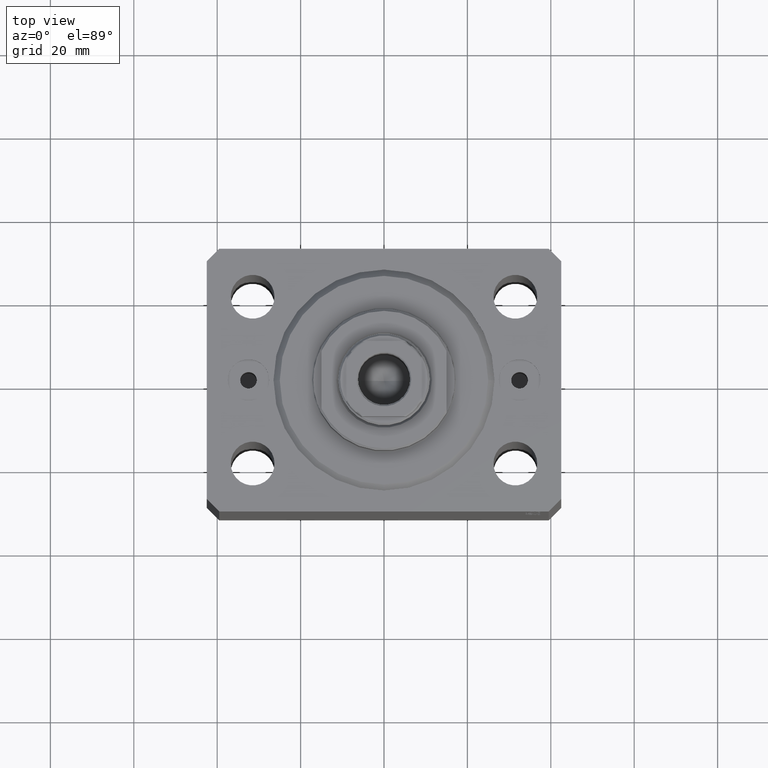
[diagram: clean part render]
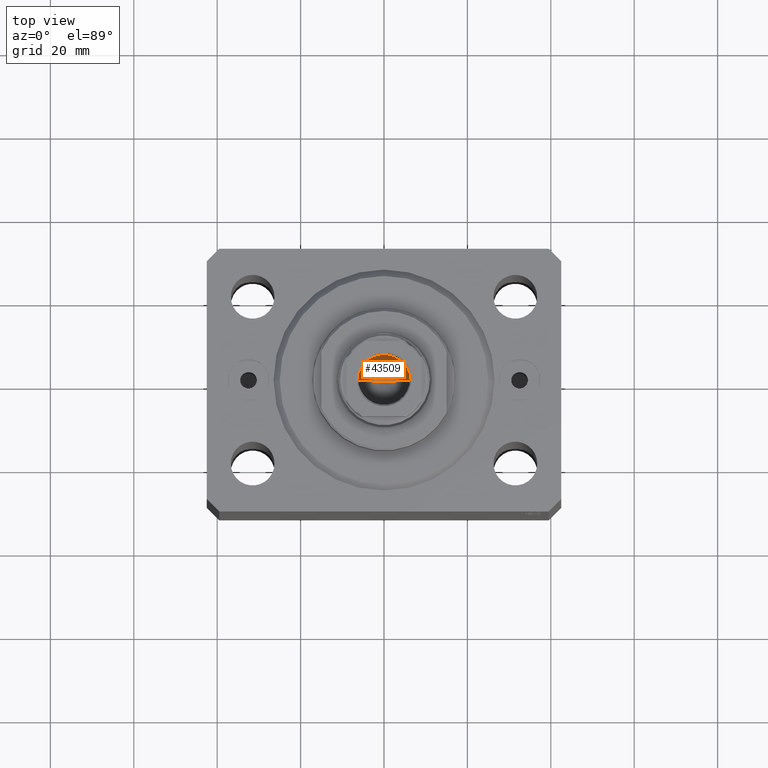
[diagram: same view with one face highlighted and labeled with its STEP entity id]
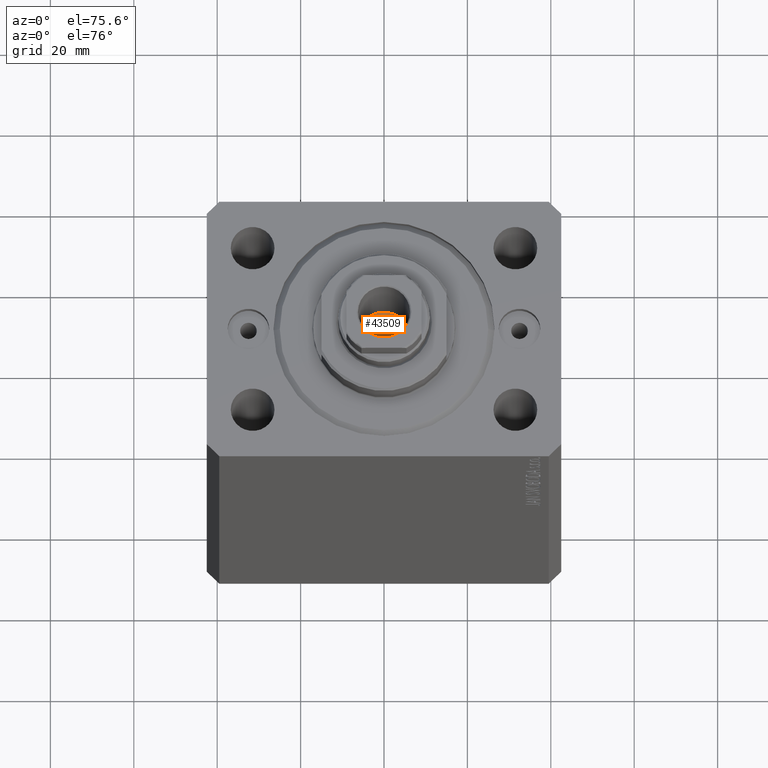
[diagram: same view with one face highlighted and labeled with its STEP entity id]
A machine part, top view. The second image highlights one B-rep face of the part: STEP entity #43509.
A second angle (auxiliary view) of the same face is appended — the face is thin or edge-on in the first view.
In plain terms, the highlighted conical surface has half-angle 59 deg.
Its self-contained STEP definition (entity closure, byte-faithful):
#360 = EDGE_LOOP ( 'NONE', ( #43379, #24067, #20508 ) ) ;
#2900 = EDGE_CURVE ( 'NONE', #38202, #8583, #3144, .T. ) ;
#2921 = DIRECTION ( 'NONE',  ( -0.8571673007021115565, 1.049727191138617710E-16, 0.5150380749100554878 ) ) ;
#3144 = LINE ( 'NONE', #16605, #38991 ) ;
#3331 = EDGE_CURVE ( 'NONE', #38202, #32186, #21467, .T. ) ;
#8583 = VERTEX_POINT ( 'NONE', #17223 ) ;
#10035 = AXIS2_PLACEMENT_3D ( 'NONE', #25557, #35868, #19488 ) ;
#10274 = CARTESIAN_POINT ( 'NONE',  ( -7.434177670704979810E-15, 0.000000000000000000, 99.74462113107774996 ) ) ;
#11062 = VECTOR ( 'NONE', #18104, 1000.000000000000000 ) ;
#12153 = DIRECTION ( 'NONE',  ( -0.000000000000000000, -0.000000000000000000, 1.000000000000000000 ) ) ;
#16605 = CARTESIAN_POINT ( 'NONE',  ( -6.249999999999993783, 7.654042494670949718E-16, 103.5000000000000142 ) ) ;
#17223 = CARTESIAN_POINT ( 'NONE',  ( -6.249999999999993783, 7.654042494670949718E-16, 103.5000000000000142 ) ) ;
#18104 = DIRECTION ( 'NONE',  ( 0.8571673007021115565, 0.000000000000000000, 0.5150380749100554878 ) ) ;
#19488 = DIRECTION ( 'NONE',  ( 1.000000000000000000, 0.000000000000000000, 0.000000000000000000 ) ) ;
#20508 = ORIENTED_EDGE ( 'NONE', *, *, #26663, .T. ) ;
#21467 = LINE ( 'NONE', #35800, #11062 ) ;
#24067 = ORIENTED_EDGE ( 'NONE', *, *, #3331, .T. ) ;
#25557 = CARTESIAN_POINT ( 'NONE',  ( 0.000000000000000000, 0.000000000000000000, 103.5000000000000142 ) ) ;
#25769 = CIRCLE ( 'NONE', #10035, 6.249999999999993783 ) ;
#26663 = EDGE_CURVE ( 'NONE', #32186, #8583, #25769, .T. ) ;
#28191 = CONICAL_SURFACE ( 'NONE', #30343, 6.249999999999993783, 1.029744258676652979 ) ;
#28957 = FACE_OUTER_BOUND ( 'NONE', #360, .T. ) ;
#30343 = AXIS2_PLACEMENT_3D ( 'NONE', #36365, #12153, #35913 ) ;
#32186 = VERTEX_POINT ( 'NONE', #36632 ) ;
#35800 = CARTESIAN_POINT ( 'NONE',  ( 6.249999999999993783, 0.000000000000000000, 103.5000000000000142 ) ) ;
#35868 = DIRECTION ( 'NONE',  ( -0.000000000000000000, -0.000000000000000000, 1.000000000000000000 ) ) ;
#35913 = DIRECTION ( 'NONE',  ( 1.000000000000000000, 0.000000000000000000, 0.000000000000000000 ) ) ;
#36365 = CARTESIAN_POINT ( 'NONE',  ( 0.000000000000000000, 0.000000000000000000, 103.5000000000000142 ) ) ;
#36632 = CARTESIAN_POINT ( 'NONE',  ( 6.249999999999993783, 0.000000000000000000, 103.5000000000000142 ) ) ;
#38202 = VERTEX_POINT ( 'NONE', #10274 ) ;
#38991 = VECTOR ( 'NONE', #2921, 1000.000000000000000 ) ;
#43379 = ORIENTED_EDGE ( 'NONE', *, *, #2900, .F. ) ;
#43509 = ADVANCED_FACE ( 'NONE', ( #28957 ), #28191, .F. ) ;